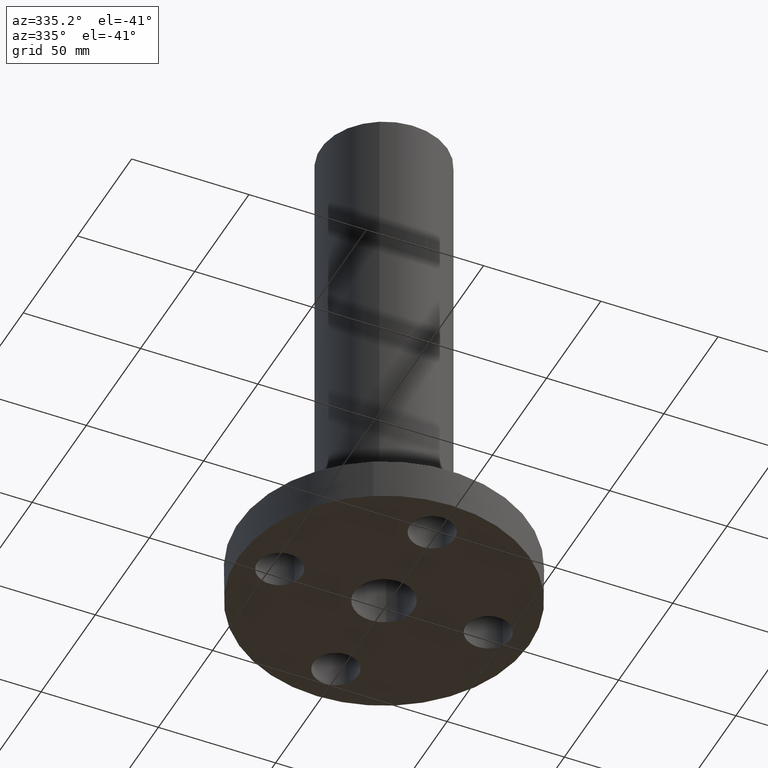
[diagram: clean part render]
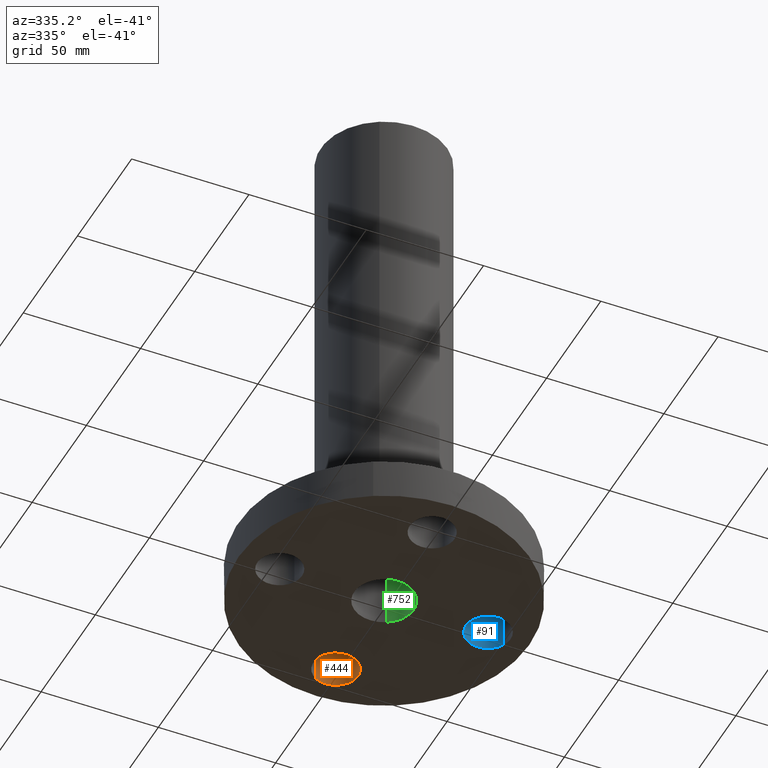
[diagram: same view with three faces highlighted in distinct colors, each labeled with its STEP entity id]
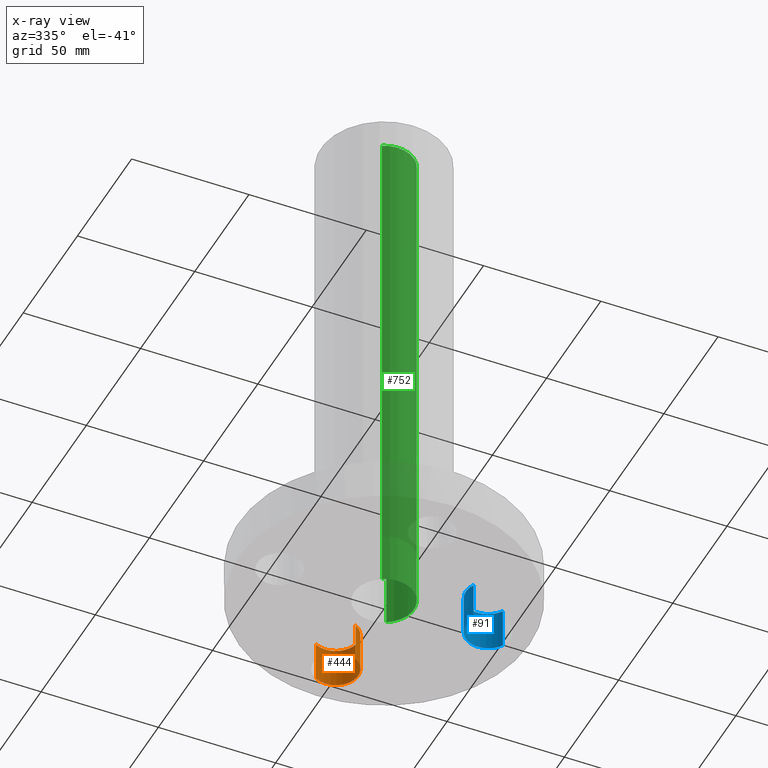
[diagram: x-ray of the same camera — body ghosted, the three highlighted faces saturated]
A machine part, auxiliary view with three faces highlighted in distinct colors.
The next image is the same camera in x-ray (body ghosted, the three faces saturated) — at least one of them is partly hidden behind the body in this view.
Their STEP definitions:

[orange] entity #444 — the highlighted cylindrical surface (edge-blend (fillet) strip) has radius 9.525 mm, axis along (0, 0, 1).
#184=AXIS2_PLACEMENT_3D('Circle Axis2P3D',#182,#183,$) ;
#417=AXIS2_PLACEMENT_3D('Cylinder Axis2P3D',#414,#415,#416) ;
#435=AXIS2_PLACEMENT_3D('Circle Axis2P3D',#433,#434,$) ;
#177=CARTESIAN_POINT('Vertex',(0.179784576977,1.4209065393,0.690000000003)) ;
#179=CARTESIAN_POINT('Vertex',(-0.179784576977,2.07909346072,0.690000000003)) ;
#182=CARTESIAN_POINT('Axis2P3D Location',(-4.19611851827E-016,1.75000000001,0.690000000003)) ;
#414=CARTESIAN_POINT('Axis2P3D Location',(-3.21469784777E-016,1.75000000001,0.00393700787402)) ;
#419=CARTESIAN_POINT('Line Origine',(0.179784576977,1.4209065393,0.345000000001)) ;
#423=CARTESIAN_POINT('Vertex',(0.179784576977,1.4209065393,2.2401153548E-016)) ;
#426=CARTESIAN_POINT('Line Origine',(-0.179784576977,2.07909346072,0.345000000001)) ;
#430=CARTESIAN_POINT('Vertex',(-0.179784576977,2.07909346072,2.2401153548E-016)) ;
#433=CARTESIAN_POINT('Axis2P3D Location',(-3.21469784777E-016,1.75000000001,0.)) ;
#183=DIRECTION('Axis2P3D Direction',(0.,0.,-0.0393700787402)) ;
#415=DIRECTION('Axis2P3D Direction',(0.,0.,0.0393700787402)) ;
#416=DIRECTION('Axis2P3D XDirection',(-0.0188750212049,0.0345504945626,0.)) ;
#420=DIRECTION('Vector Direction',(0.,0.,0.0393700787402)) ;
#427=DIRECTION('Vector Direction',(0.,0.,0.0393700787402)) ;
#434=DIRECTION('Axis2P3D Direction',(0.,0.,0.0393700787402)) ;
#421=VECTOR('Line Direction',#420,0.0393700787402) ;
#428=VECTOR('Line Direction',#427,0.0393700787402) ;
#439=ORIENTED_EDGE('',*,*,#425,.F.) ;
#440=ORIENTED_EDGE('',*,*,#186,.F.) ;
#441=ORIENTED_EDGE('',*,*,#432,.T.) ;
#442=ORIENTED_EDGE('',*,*,#437,.T.) ;
#444=ADVANCED_FACE('PartBody',(#443),#418,.F.) ;
#185=CIRCLE('generated circle',#184,0.375000000001) ;
#436=CIRCLE('generated circle',#435,0.375000000001) ;
#418=CYLINDRICAL_SURFACE('generated cylinder',#417,0.375000000001) ;
#186=EDGE_CURVE('',#180,#178,#185,.T.) ;
#425=EDGE_CURVE('',#178,#424,#422,.F.) ;
#432=EDGE_CURVE('',#180,#431,#429,.F.) ;
#437=EDGE_CURVE('',#431,#424,#436,.F.) ;
#438=EDGE_LOOP('',(#439,#440,#441,#442)) ;
#443=FACE_OUTER_BOUND('',#438,.T.) ;
#422=LINE('Line',#419,#421) ;
#429=LINE('Line',#426,#428) ;
#178=VERTEX_POINT('',#177) ;
#180=VERTEX_POINT('',#179) ;
#424=VERTEX_POINT('',#423) ;
#431=VERTEX_POINT('',#430) ;

[blue] entity #91 — the highlighted cylindrical surface (edge-blend (fillet) strip) has radius 9.525 mm, axis along (0, -0, 1).
#38=AXIS2_PLACEMENT_3D('Cylinder Axis2P3D',#35,#36,#37) ;
#77=AXIS2_PLACEMENT_3D('Circle Axis2P3D',#75,#76,$) ;
#82=AXIS2_PLACEMENT_3D('Circle Axis2P3D',#80,#81,$) ;
#35=CARTESIAN_POINT('Axis2P3D Location',(1.75000000001,0.,0.00393700787402)) ;
#40=CARTESIAN_POINT('Line Origine',(1.4209065393,-0.179784576977,0.345000000001)) ;
#44=CARTESIAN_POINT('Vertex',(1.4209065393,-0.179784576977,0.690000000003)) ;
#46=CARTESIAN_POINT('Vertex',(1.4209065393,-0.179784576977,2.2401153548E-016)) ;
#53=CARTESIAN_POINT('Vertex',(2.07909346072,0.179784576977,0.690000000003)) ;
#56=CARTESIAN_POINT('Line Origine',(2.07909346072,0.179784576977,0.345000000001)) ;
#60=CARTESIAN_POINT('Vertex',(2.07909346072,0.179784576977,2.2401153548E-016)) ;
#75=CARTESIAN_POINT('Axis2P3D Location',(1.75000000001,0.,0.690000000003)) ;
#80=CARTESIAN_POINT('Axis2P3D Location',(1.75000000001,0.,0.)) ;
#36=DIRECTION('Axis2P3D Direction',(0.,-0.,0.0393700787402)) ;
#37=DIRECTION('Axis2P3D XDirection',(0.0345504945626,0.0188750212049,0.)) ;
#41=DIRECTION('Vector Direction',(0.,0.,0.0393700787402)) ;
#57=DIRECTION('Vector Direction',(0.,0.,0.0393700787402)) ;
#76=DIRECTION('Axis2P3D Direction',(0.,-0.,0.0393700787402)) ;
#81=DIRECTION('Axis2P3D Direction',(0.,-0.,0.0393700787402)) ;
#42=VECTOR('Line Direction',#41,0.0393700787402) ;
#58=VECTOR('Line Direction',#57,0.0393700787402) ;
#86=ORIENTED_EDGE('',*,*,#62,.F.) ;
#87=ORIENTED_EDGE('',*,*,#79,.F.) ;
#88=ORIENTED_EDGE('',*,*,#48,.T.) ;
#89=ORIENTED_EDGE('',*,*,#84,.T.) ;
#91=ADVANCED_FACE('PartBody',(#90),#39,.F.) ;
#78=CIRCLE('generated circle',#77,0.375000000001) ;
#83=CIRCLE('generated circle',#82,0.375000000001) ;
#39=CYLINDRICAL_SURFACE('generated cylinder',#38,0.375000000001) ;
#48=EDGE_CURVE('',#45,#47,#43,.F.) ;
#62=EDGE_CURVE('',#54,#61,#59,.F.) ;
#79=EDGE_CURVE('',#45,#54,#78,.F.) ;
#84=EDGE_CURVE('',#47,#61,#83,.F.) ;
#85=EDGE_LOOP('',(#86,#87,#88,#89)) ;
#90=FACE_OUTER_BOUND('',#85,.T.) ;
#43=LINE('Line',#40,#42) ;
#59=LINE('Line',#56,#58) ;
#45=VERTEX_POINT('',#44) ;
#47=VERTEX_POINT('',#46) ;
#54=VERTEX_POINT('',#53) ;
#61=VERTEX_POINT('',#60) ;

[green] entity #752 — the highlighted cylindrical surface (edge-blend (fillet) strip) has radius 12.7 mm, axis along (0, 0, -1).
#535=AXIS2_PLACEMENT_3D('Circle Axis2P3D',#533,#534,$) ;
#725=AXIS2_PLACEMENT_3D('Cylinder Axis2P3D',#722,#723,#724) ;
#729=AXIS2_PLACEMENT_3D('Circle Axis2P3D',#727,#728,$) ;
#528=CARTESIAN_POINT('Vertex',(-0.239712769303,-0.438791280947,8.75000000004)) ;
#530=CARTESIAN_POINT('Vertex',(0.239712769303,0.438791280947,8.75000000004)) ;
#533=CARTESIAN_POINT('Axis2P3D Location',(0.,0.,8.75000000003)) ;
#722=CARTESIAN_POINT('Axis2P3D Location',(0.,0.,4.25000000002)) ;
#727=CARTESIAN_POINT('Axis2P3D Location',(0.,0.,0.)) ;
#731=CARTESIAN_POINT('Vertex',(-0.239712769303,-0.438791280947,0.)) ;
#733=CARTESIAN_POINT('Vertex',(0.239712769303,0.438791280947,0.)) ;
#736=CARTESIAN_POINT('Line Origine',(-0.239712769303,-0.438791280947,4.37500000002)) ;
#741=CARTESIAN_POINT('Line Origine',(0.239712769303,0.438791280947,4.37500000002)) ;
#534=DIRECTION('Axis2P3D Direction',(0.,0.,-0.0393700787402)) ;
#723=DIRECTION('Axis2P3D Direction',(0.,0.,-0.0393700787402)) ;
#724=DIRECTION('Axis2P3D XDirection',(-0.0188750212049,-0.0345504945626,0.)) ;
#728=DIRECTION('Axis2P3D Direction',(0.,0.,-0.0393700787402)) ;
#737=DIRECTION('Vector Direction',(0.,0.,-0.0393700787402)) ;
#742=DIRECTION('Vector Direction',(0.,0.,-0.0393700787402)) ;
#738=VECTOR('Line Direction',#737,0.0393700787402) ;
#743=VECTOR('Line Direction',#742,0.0393700787402) ;
#747=ORIENTED_EDGE('',*,*,#735,.F.) ;
#748=ORIENTED_EDGE('',*,*,#740,.F.) ;
#749=ORIENTED_EDGE('',*,*,#537,.F.) ;
#750=ORIENTED_EDGE('',*,*,#745,.T.) ;
#752=ADVANCED_FACE('PartBody',(#751),#726,.F.) ;
#536=CIRCLE('generated circle',#535,0.500000000002) ;
#730=CIRCLE('generated circle',#729,0.500000000002) ;
#726=CYLINDRICAL_SURFACE('generated cylinder',#725,0.500000000002) ;
#537=EDGE_CURVE('',#531,#529,#536,.T.) ;
#735=EDGE_CURVE('',#732,#734,#730,.F.) ;
#740=EDGE_CURVE('',#529,#732,#739,.T.) ;
#745=EDGE_CURVE('',#531,#734,#744,.T.) ;
#746=EDGE_LOOP('',(#747,#748,#749,#750)) ;
#751=FACE_OUTER_BOUND('',#746,.T.) ;
#739=LINE('Line',#736,#738) ;
#744=LINE('Line',#741,#743) ;
#529=VERTEX_POINT('',#528) ;
#531=VERTEX_POINT('',#530) ;
#732=VERTEX_POINT('',#731) ;
#734=VERTEX_POINT('',#733) ;